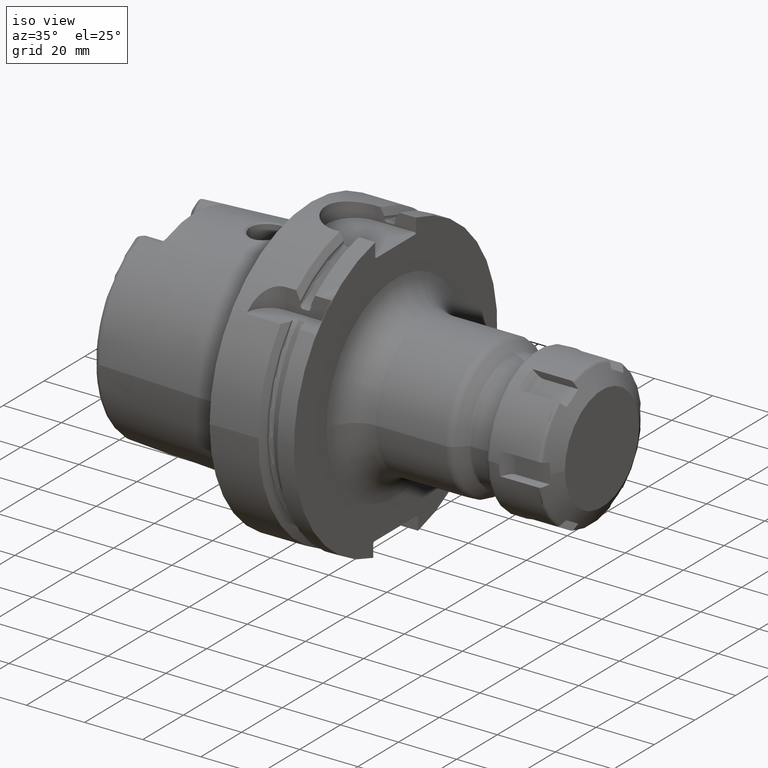
[diagram: clean part render]
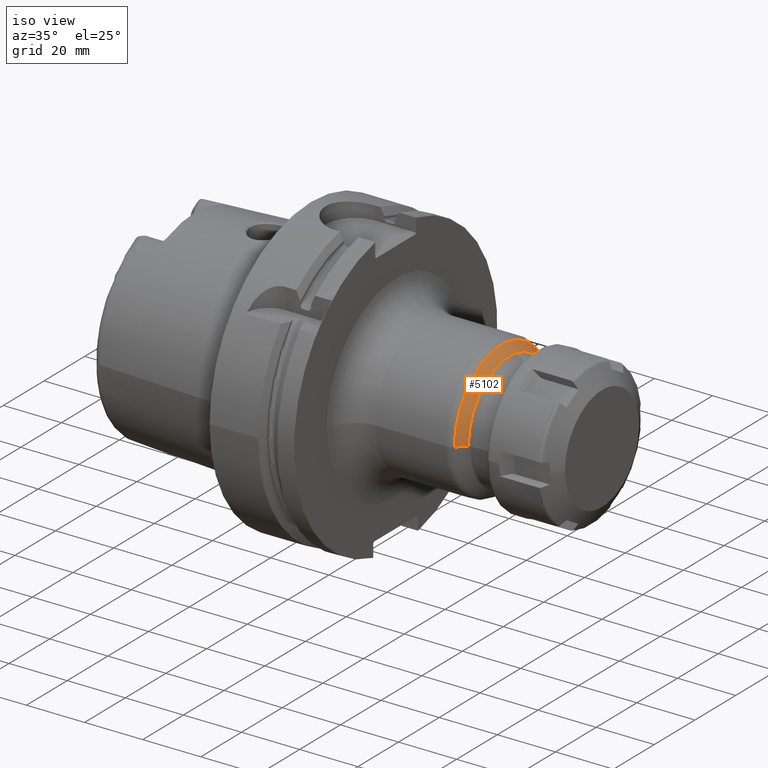
[diagram: same view with one face highlighted and labeled with its STEP entity id]
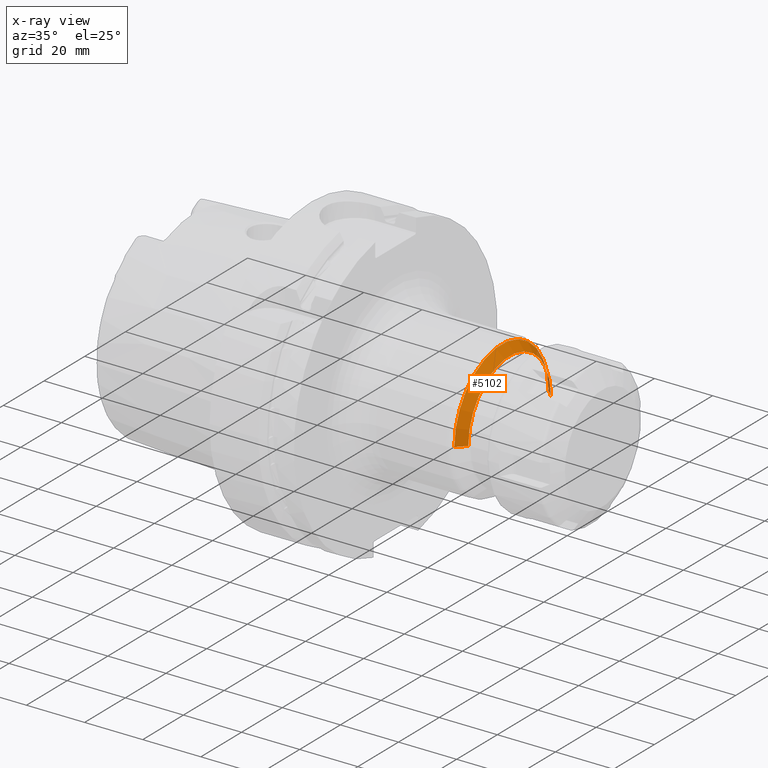
[diagram: x-ray of the same camera — body ghosted, the highlighted face saturated]
A machine part, iso view. The second image highlights one B-rep face of the part: STEP entity #5102.
The next image is the same camera in x-ray: the body ghosted, the highlighted face saturated — about 4% of this face is hidden behind the body in this view.
In plain terms, the highlighted conical surface has half-angle 45 deg.
Its self-contained STEP definition (entity closure, byte-faithful):
#1835=DIRECTION('',(-7.071067811865E-1,-7.071067811865E-1,-1.984801725263E-13));
#1836=VECTOR('',#1835,4.E0);
#1837=CARTESIAN_POINT('',(6.820710678119E1,-2.029289321881E1,
5.981248646044E-14));
#1838=LINE('',#1837,#1836);
#1844=DIRECTION('',(-7.071067811865E-1,7.071067811865E-1,1.986613295465E-13));
#1845=VECTOR('',#1844,4.E0);
#1846=CARTESIAN_POINT('',(6.820710678119E1,2.029289321881E1,
-6.035397984869E-14));
#1847=LINE('',#1846,#1845);
#1848=CARTESIAN_POINT('',(6.537867965644E1,0.E0,0.E0));
#1849=DIRECTION('',(-1.E0,0.E0,0.E0));
#1850=DIRECTION('',(0.E0,-1.E0,0.E0));
#1851=AXIS2_PLACEMENT_3D('',#1848,#1849,#1850);
#1853=CARTESIAN_POINT('',(6.820710678119E1,0.E0,0.E0));
#1854=DIRECTION('',(1.E0,0.E0,0.E0));
#1855=DIRECTION('',(0.E0,1.E0,0.E0));
#1856=AXIS2_PLACEMENT_3D('',#1853,#1854,#1855);
#3208=CARTESIAN_POINT('',(6.820710678119E1,-2.029289321881E1,0.E0));
#3209=CARTESIAN_POINT('',(6.820710678119E1,2.029289321881E1,0.E0));
#3210=VERTEX_POINT('',#3208);
#3211=VERTEX_POINT('',#3209);
#3220=CARTESIAN_POINT('',(6.537867965644E1,2.312132034356E1,0.E0));
#3221=CARTESIAN_POINT('',(6.537867965644E1,-2.312132034356E1,0.E0));
#3222=VERTEX_POINT('',#3220);
#3223=VERTEX_POINT('',#3221);
#5090=CARTESIAN_POINT('',(6.679289321881E1,0.E0,0.E0));
#5091=DIRECTION('',(-1.E0,0.E0,0.E0));
#5092=DIRECTION('',(0.E0,1.E0,0.E0));
#5093=AXIS2_PLACEMENT_3D('',#5090,#5091,#5092);
#5094=CONICAL_SURFACE('',#5093,2.170710678119E1,4.5E1);
#5095=ORIENTED_EDGE('',*,*,#5042,.T.);
#5096=ORIENTED_EDGE('',*,*,#5085,.F.);
#5098=ORIENTED_EDGE('',*,*,#5097,.T.);
#5099=ORIENTED_EDGE('',*,*,#5081,.T.);
#5100=EDGE_LOOP('',(#5095,#5096,#5098,#5099));
#5101=FACE_OUTER_BOUND('',#5100,.F.);
#5102=ADVANCED_FACE('',(#5101),#5094,.T.);
#1852=CIRCLE('',#1851,2.312132034356E1);
#1857=CIRCLE('',#1856,2.029289321881E1);
#5042=EDGE_CURVE('',#3223,#3222,#1852,.T.);
#5081=EDGE_CURVE('',#3210,#3223,#1838,.T.);
#5085=EDGE_CURVE('',#3211,#3222,#1847,.T.);
#5097=EDGE_CURVE('',#3211,#3210,#1857,.T.);